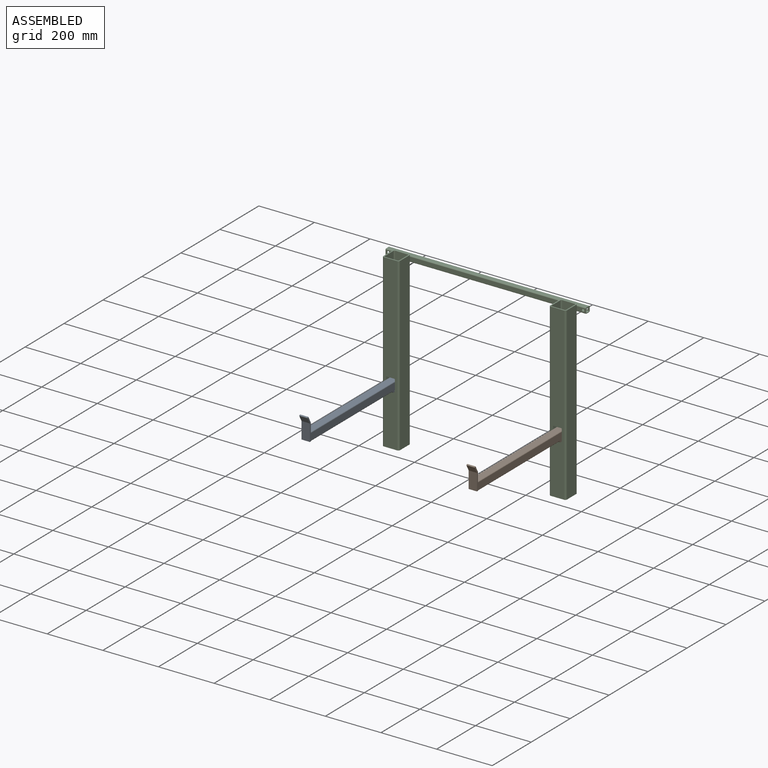
[diagram: assembled view]
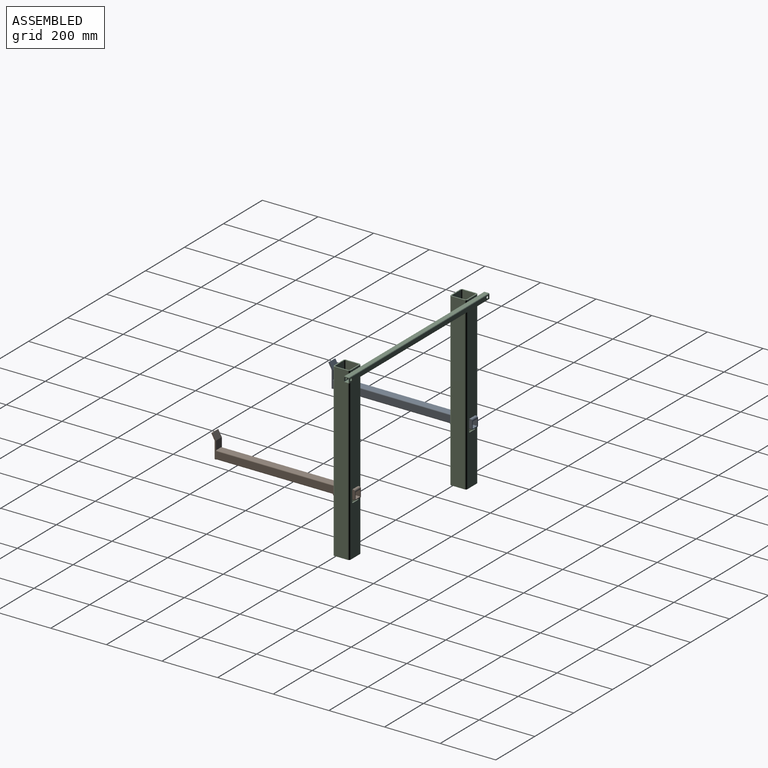
[diagram: assembled view, second angle]
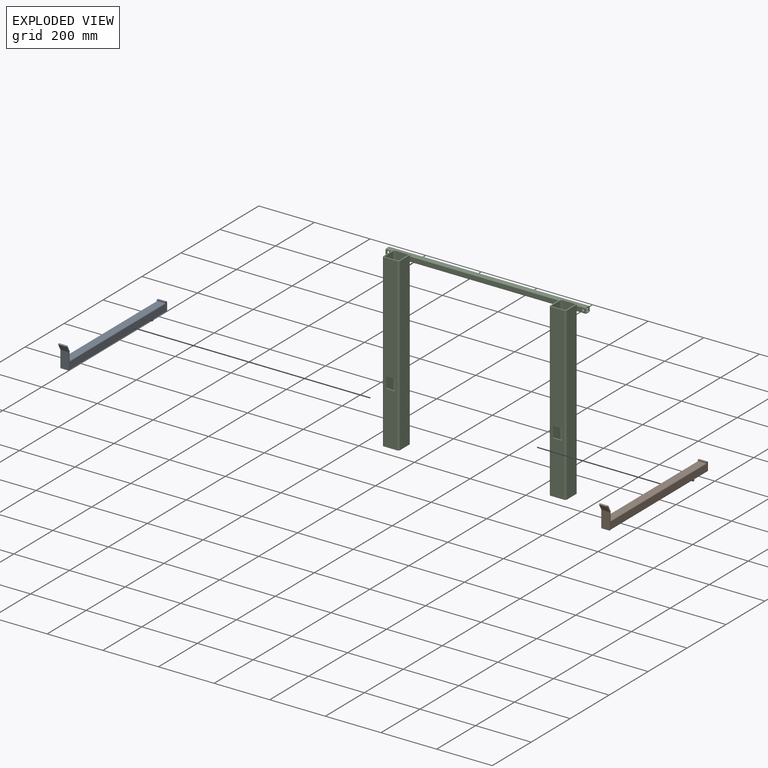
[diagram: exploded view]
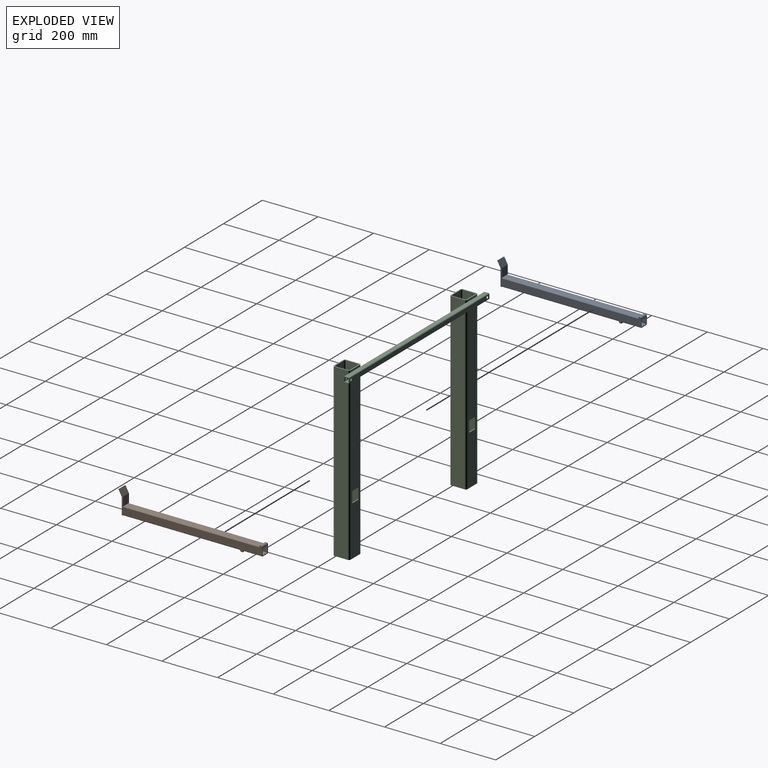
[diagram: exploded view, second angle]
ASSEMBLY  parts=3 mates=2
PART A: 37 faces, bbox 516.9x30x88.4 mm
  f0: plane 30x3.03mm, normal (-1,0,0), area 4.6mm2, adj f2,f8,f9,f19,f20,f21
  f1: plane 33.49x30mm, normal (-1,0,0), area 918.5mm2, adj f7,f8,f9,f17,f18,f22
  f2: plane 30x5mm, normal (0,0,-1), area 150mm2, adj f0,f3,f8,f9
  f3: plane 60.26x30mm, normal (1,0,0), area 1807.7mm2, adj f2,f4,f8,f9
  f4: plane 30x21.71mm, normal (0.88,0,-0.48), area 743.3mm2, adj f3,f5,f8,f9
  f5: plane 30x4.38mm, normal (0.48,0,0.88), area 150mm2, adj f4,f6,f8,f9
  f6: plane 30x21.93mm, normal (-0.88,0,0.48), area 751mm2, adj f5,f7,f8,f9
  f7: cylinder r=4mm len=30mm, axis (0,-1,0), area 60.4mm2, adj f1,f6,f8,f9
  f8: plane 516.94x88.35mm, normal (0,1,0), area 12560.8mm2, adj f0,f1,f2,f3,f4,f5,f6,f7
  f9: plane 516.94x88.35mm, normal (0,-1,0), area 12560.8mm2, adj f0,f1,f2,f3,f4,f5,f6,f7
  f10: plane 2x0.76mm, normal (1,0,0), area 0.5mm2, adj f9,f19,f30
  f11: cylinder r=3mm len=70mm, axis (-1,0,0), area 329.9mm2, adj f9,f13,f24,f29
  f12: cylinder r=3mm len=70mm, axis (-1,0,0), area 329.9mm2, adj f8,f13,f24,f29
  f13: plane 70x24mm, normal (0,0,-1), area 1680mm2, adj f11,f12,f24,f29
  f14: plane 500x24mm, normal (0,0,1), area 12000mm2, adj f15,f23,f24,f36
  f15: plane 500x24mm, normal (0,1,0), area 12000mm2, adj f14,f16,f24,f36
  f16: plane 500x24mm, normal (0,0,-1), area 12000mm2, adj f15,f23,f24,f36
  f17: plane 490x24mm, normal (0,0,1), area 11760mm2, adj f1,f18,f22,f26
  f18: cylinder r=3mm len=490mm, axis (-1,0,0), area 2309.1mm2, adj f1,f9,f17,f26
  f19: cylinder r=3mm len=420mm, axis (-1,0,0), area 1979.2mm2, adj f0,f9,f10,f20,f31
  f20: plane 420x24mm, normal (0,0,-1), area 10080mm2, adj f0,f19,f21,f32
  f21: cylinder r=3mm len=420mm, axis (-1,0,0), area 1979.2mm2, adj f0,f8,f20,f28,f33
  f22: cylinder r=3mm len=490mm, axis (-1,0,0), area 2309.1mm2, adj f1,f8,f17,f26
  f23: plane 500x24mm, normal (0,-1,0), area 12000mm2, adj f14,f16,f24,f36
  f24: plane 30x29mm, normal (-1,0,0), area 290.1mm2, adj f8,f9,f11,f12,f13,f14,f15,f16
  f25: plane 30x5mm, normal (0,0,1), area 150mm2, adj f8,f9,f26,f35
  f26: plane 30x7mm, normal (1,0,0), area 123.9mm2, adj f8,f9,f17,f18,f22,f25
  f27: plane 30x5.1mm, normal (0,0,-1), area 152.7mm2, adj f8,f9,f29,f30,f31,f32,f33,f34
  f28: plane 2x0.76mm, normal (1,0,0), area 0.5mm2, adj f8,f21,f34
  f29: plane 30x7mm, normal (-1,0,0), area 123.9mm2, adj f8,f9,f11,f12,f13,f27
  f30: cylinder r=5mm len=5mm, axis (0,-1,0), area 6mm2, adj f9,f10,f27,f31
  f31: bspline ~5.19x5.17mm, area 16mm2, adj f19,f27,f30,f32
  f32: cylinder r=5mm len=24mm, axis (0,-1,0), area 164.3mm2, adj f20,f27,f31,f33
  f33: bspline ~5.15x5.13mm, area 16mm2, adj f21,f27,f32,f34
  f34: cylinder r=5mm len=5mm, axis (0,-1,0), area 6mm2, adj f8,f27,f28,f33
  f35: cylinder r=5mm len=30mm, axis (0,-1,0), area 235.6mm2, adj f8,f9,f24,f25
  f36: plane 24x24mm, normal (-1,0,0), area 576mm2, adj f14,f15,f16,f23
PART B: same geometry as A
PART C: 94 faces, bbox 720x80x615 mm
  f0: plane 36x14mm, normal (0,-1,0), area 440.4mm2, adj f5,f7,f20,f22,f65
  f1: plane 615x48mm, normal (0,-1,0), area 28283.4mm2, adj f32,f40,f41,f42,f43,f44,f45,f46
  f2: plane 615x44mm, normal (0,1,0), area 25823.4mm2, adj f37,f38,f41,f42,f43,f44,f45,f46
  f3: plane 552x14mm, normal (0,-1,0), area 7728mm2, adj f5,f7,f28,f63
  f4: plane 720x14mm, normal (0,0,1), area 10080mm2, adj f5,f19,f20,f21
  f5: cylinder r=3mm len=720mm, axis (-1,0,0), area 3392.9mm2, adj f0,f3,f4,f6,f20,f21,f26,f61
  f6: plane 36x14mm, normal (0,-1,0), area 440.4mm2, adj f5,f7,f21,f23,f30
  f7: cylinder r=3mm len=720mm, axis (-1,0,0), area 3392.9mm2, adj f0,f3,f6,f8,f20,f21,f29,f64
  f8: plane 720x14mm, normal (0,0,-1), area 10080mm2, adj f7,f9,f20,f21
  f9: cylinder r=3mm len=720mm, axis (-1,0,0), area 3392.9mm2, adj f8,f10,f20,f21
  f10: plane 720x14mm, normal (0,1,0), area 9952.8mm2, adj f9,f19,f20,f21,f24,f25
  f11: cylinder r=2mm len=720mm, axis (-1,0,0), area 2261.9mm2, adj f12,f18,f20,f21
  f12: plane 720x12mm, normal (0,-1,0), area 8512.8mm2, adj f11,f13,f20,f21,f24,f25
  f13: cylinder r=2mm len=720mm, axis (-1,0,0), area 2261.9mm2, adj f12,f14,f20,f21
  f14: plane 720x12mm, normal (0,0,1), area 8640mm2, adj f13,f15,f20,f21
  f15: cylinder r=2mm len=720mm, axis (-1,0,0), area 2261.9mm2, adj f14,f16,f20,f21
  f16: plane 720x12mm, normal (0,1,0), area 8512.8mm2, adj f15,f17,f20,f21,f22,f23
  f17: cylinder r=2mm len=720mm, axis (-1,0,0), area 2261.9mm2, adj f16,f18,f20,f21
  f18: plane 720x12mm, normal (0,0,-1), area 8640mm2, adj f11,f17,f20,f21
  f19: cylinder r=3mm len=720mm, axis (-1,0,0), area 3392.9mm2, adj f4,f10,f20,f21
  f20: plane 20x20mm, normal (1,0,0), area 139.7mm2, adj f0,f4,f5,f7,f8,f9,f10,f11
  f21: plane 20x20mm, normal (-1,0,0), area 139.7mm2, adj f4,f5,f6,f7,f8,f9,f10,f11
  f22: cylinder r=4.5mm len=9mm, axis (0,-1,0), area 56.5mm2, adj f0,f16
  f23: cylinder r=4.5mm len=9mm, axis (0,-1,0), area 56.5mm2, adj f6,f16
  f24: cylinder r=4.5mm len=9mm, axis (0,-1,0), area 56.5mm2, adj f10,f12
  f25: cylinder r=4.5mm len=9mm, axis (0,-1,0), area 56.5mm2, adj f10,f12
  f26: plane 48x8mm, normal (0,1,0), area 384mm2, adj f5,f28,f30,f42
  f27: plane 615x48mm, normal (1,0,0), area 29520mm2, adj f28,f40,f41,f42
  f28: cylinder r=6mm len=615mm, axis (0,0,1), area 5796.2mm2, adj f3,f26,f27,f29,f41,f42
  f29: plane 593x48mm, normal (0,1,0), area 27227.4mm2, adj f7,f28,f30,f41,f51,f52,f53,f54
  f30: cylinder r=6mm len=615mm, axis (0,0,1), area 5796.2mm2, adj f6,f26,f29,f31,f41,f42
  f31: plane 615x48mm, normal (-1,0,0), area 29520mm2, adj f30,f32,f41,f42
  f32: cylinder r=6mm len=615mm, axis (0,0,1), area 5796.2mm2, adj f1,f31,f41,f42
  f33: cylinder r=4mm len=615mm, axis (0,0,1), area 3864.2mm2, adj f34,f39,f41,f42
  f34: plane 615x44mm, normal (0,-1,0), area 25823.4mm2, adj f33,f35,f41,f42,f51,f52,f53,f54
  f35: cylinder r=4mm len=615mm, axis (0,0,1), area 3864.2mm2, adj f34,f36,f41,f42
  f36: plane 615x44mm, normal (-1,0,0), area 27060mm2, adj f35,f37,f41,f42
  f37: cylinder r=4mm len=615mm, axis (0,0,1), area 3864.2mm2, adj f2,f36,f41,f42
  f38: cylinder r=4mm len=615mm, axis (0,0,1), area 3864.2mm2, adj f2,f39,f41,f42
  f39: plane 615x44mm, normal (1,0,0), area 27060mm2, adj f33,f38,f41,f42
  f40: cylinder r=6mm len=615mm, axis (0,0,1), area 5796.2mm2, adj f1,f27,f41,f42
  f41: plane 60x60mm, normal (0,0,-1), area 878.8mm2, adj f1,f2,f27,f28,f29,f30,f31,f32
  f42: plane 60x60mm, normal (0,0,1), area 878.8mm2, adj f1,f2,f26,f27,f28,f30,f31,f32
  f43: plane 36x4mm, normal (-1,0,0), area 144mm2, adj f1,f2,f44,f50
  f44: cylinder r=2mm len=4mm, axis (0,-1,0), area 12.6mm2, adj f1,f2,f43,f45
  f45: plane 27x4mm, normal (0,0,-1), area 108mm2, adj f1,f2,f44,f46
  f46: cylinder r=2mm len=4mm, axis (0,-1,0), area 12.6mm2, adj f1,f2,f45,f47
  f47: plane 36x4mm, normal (1,0,0), area 144mm2, adj f1,f2,f46,f48
  f48: cylinder r=2mm len=4mm, axis (0,-1,0), area 12.6mm2, adj f1,f2,f47,f49
  f49: plane 27x4mm, normal (0,0,1), area 108mm2, adj f1,f2,f48,f50
  f50: cylinder r=2mm len=4mm, axis (0,-1,0), area 12.6mm2, adj f1,f2,f43,f49
  f51: plane 36x4mm, normal (-1,0,0), area 144mm2, adj f29,f34,f52,f58
  f52: cylinder r=2mm len=4mm, axis (0,1,0), area 12.6mm2, adj f29,f34,f51,f53
  f53: plane 27x4mm, normal (0,0,1), area 108mm2, adj f29,f34,f52,f54
  f54: cylinder r=2mm len=4mm, axis (0,1,0), area 12.6mm2, adj f29,f34,f53,f55
  f55: plane 36x4mm, normal (1,0,0), area 144mm2, adj f29,f34,f54,f56
  f56: cylinder r=2mm len=4mm, axis (0,1,0), area 12.6mm2, adj f29,f34,f55,f57
  f57: plane 27x4mm, normal (0,0,-1), area 108mm2, adj f29,f34,f56,f58
  f58: cylinder r=2mm len=4mm, axis (0,1,0), area 12.6mm2, adj f29,f34,f51,f57
  f59: plane 615x48mm, normal (0,-1,0), area 28283.4mm2, adj f67,f75,f76,f77,f78,f79,f80,f81
  f60: plane 615x44mm, normal (0,1,0), area 25823.4mm2, adj f72,f73,f76,f77,f78,f79,f80,f81
  f61: plane 48x8mm, normal (0,1,0), area 384mm2, adj f5,f63,f65,f77
  f62: plane 615x48mm, normal (-1,0,0), area 29520mm2, adj f63,f75,f76,f77
  f63: cylinder r=6mm len=615mm, axis (0,0,1), area 5796.2mm2, adj f3,f61,f62,f64,f76,f77
  f64: plane 593x48mm, normal (0,1,0), area 27227.4mm2, adj f7,f63,f65,f76,f86,f87,f88,f89
  f65: cylinder r=6mm len=615mm, axis (0,0,1), area 5796.2mm2, adj f0,f61,f64,f66,f76,f77
  f66: plane 615x48mm, normal (1,0,0), area 29520mm2, adj f65,f67,f76,f77
  f67: cylinder r=6mm len=615mm, axis (0,0,1), area 5796.2mm2, adj f59,f66,f76,f77
  f68: cylinder r=4mm len=615mm, axis (0,0,1), area 3864.2mm2, adj f69,f74,f76,f77
  f69: plane 615x44mm, normal (0,-1,0), area 25823.4mm2, adj f68,f70,f76,f77,f86,f87,f88,f89
  f70: cylinder r=4mm len=615mm, axis (0,0,1), area 3864.2mm2, adj f69,f71,f76,f77
  f71: plane 615x44mm, normal (1,0,0), area 27060mm2, adj f70,f72,f76,f77
  f72: cylinder r=4mm len=615mm, axis (0,0,1), area 3864.2mm2, adj f60,f71,f76,f77
  f73: cylinder r=4mm len=615mm, axis (0,0,1), area 3864.2mm2, adj f60,f74,f76,f77
  f74: plane 615x44mm, normal (-1,0,0), area 27060mm2, adj f68,f73,f76,f77
  f75: cylinder r=6mm len=615mm, axis (0,0,1), area 5796.2mm2, adj f59,f62,f76,f77
  f76: plane 60x60mm, normal (0,0,-1), area 878.8mm2, adj f59,f60,f62,f63,f64,f65,f66,f67
  f77: plane 60x60mm, normal (0,0,1), area 878.8mm2, adj f59,f60,f61,f62,f63,f65,f66,f67
  f78: plane 36x4mm, normal (1,0,0), area 144mm2, adj f59,f60,f79,f85
  f79: cylinder r=2mm len=4mm, axis (0,-1,0), area 12.6mm2, adj f59,f60,f78,f80
  f80: plane 27x4mm, normal (0,0,-1), area 108mm2, adj f59,f60,f79,f81
  f81: cylinder r=2mm len=4mm, axis (0,-1,0), area 12.6mm2, adj f59,f60,f80,f82
  f82: plane 36x4mm, normal (-1,0,0), area 144mm2, adj f59,f60,f81,f83
  f83: cylinder r=2mm len=4mm, axis (0,-1,0), area 12.6mm2, adj f59,f60,f82,f84
  f84: plane 27x4mm, normal (0,0,1), area 108mm2, adj f59,f60,f83,f85
  f85: cylinder r=2mm len=4mm, axis (0,-1,0), area 12.6mm2, adj f59,f60,f78,f84
  f86: plane 36x4mm, normal (1,0,0), area 144mm2, adj f64,f69,f87,f93
  f87: cylinder r=2mm len=4mm, axis (0,1,0), area 12.6mm2, adj f64,f69,f86,f88
  f88: plane 27x4mm, normal (0,0,1), area 108mm2, adj f64,f69,f87,f89
  f89: cylinder r=2mm len=4mm, axis (0,1,0), area 12.6mm2, adj f64,f69,f88,f90
  f90: plane 36x4mm, normal (-1,0,0), area 144mm2, adj f64,f69,f89,f91
  f91: cylinder r=2mm len=4mm, axis (0,1,0), area 12.6mm2, adj f64,f69,f90,f92
  f92: plane 27x4mm, normal (0,0,-1), area 108mm2, adj f64,f69,f91,f93
  f93: cylinder r=2mm len=4mm, axis (0,1,0), area 12.6mm2, adj f64,f69,f86,f92
PLACE A rot(axis=(0,0,-1),90deg) t=(-308.33,-120.16,-317.95)mm
PLACE B rot(axis=(0,0,-1),90deg) t=(292.67,-120.16,-317.95)mm
PLACE C t=(7.17,-130.16,71.05)mm
MATE planar A.f9 <-> C.f55  axis (-1,0,0) through (-308.33,-130.16,-320.95)mm
MATE fastened B.f8 <-> C.f90  axis (1,0,0) through (322.67,-130.16,-320.95)mm
